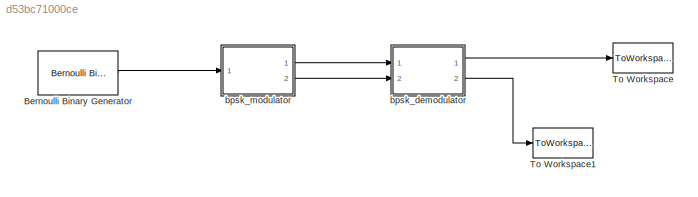
MODEL slx_d53bc71000ce
KIND model
CONFIG AbsTol = auto
CONFIG EnableMultiTasking = off
CONFIG FixedStep = auto
CONFIG MaxStep = auto
CONFIG MinStep = auto
CONFIG RelTol = 1e-3
CONFIG SampleTimeConstraint = Unconstrained
CONFIG Solver = VariableStepAuto
CONFIG SolverName = VariableStepAuto
CONFIG StartTime = 0.0
CONFIG StopTime = 0
BLOCK [Reference] Bernoulli Binary Generator  REF=commrandsrc3/Bernoulli Binary
Generator
  Ports = [0, 1]
  SourceBlock = commrandsrc3/Bernoulli Binary\nGenerator
  SourceProductBaseCode = CM
  SourceProductName = Communications System Toolbox
  SourceType = Bernoulli Binary Generator
BLOCK [ToWorkspace] To Workspace
  FixptAsFi = on
  MaxDataPoints = inf
  Ports = [1]
  SampleTime = -1
  Save2DSignal = 2-D array (concatenate along first dimension)
  VariableName = simout
BLOCK [ToWorkspace] To Workspace1
  FixptAsFi = on
  MaxDataPoints = inf
  Ports = [1]
  SampleTime = -1
  Save2DSignal = 2-D array (concatenate along first dimension)
  VariableName = simout1
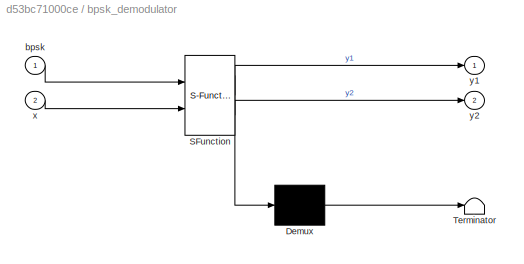
BLOCK [SubSystem] bpsk_demodulator
  ErrorFcn = Stateflow.Translate.translate
  PermitHierarchicalResolution = ExplicitOnly
  Ports = [2, 2]
  RequestExecContextInheritance = off
  SFBlockType = MATLAB Function
  TreatAsAtomicUnit = on
BLOCK [Demux] bpsk_demodulator/ Demux 
  Outputs = 1
  Ports = [1, 1]
BLOCK [S-Function] bpsk_demodulator/ SFunction 
  EnableBusSupport = on
  FunctionName = sf_sfun
  PortCounts = [2 3]
  Ports = [2, 3]
  SFcnIsStateOwnerBlock = off
  SFunctionDeploymentMode = off
  Tag = Stateflow S-Function untitled 1
BLOCK [Terminator] bpsk_demodulator/ Terminator 
BLOCK [Inport] bpsk_demodulator/bpsk
  IconDisplay = Port number
BLOCK [Inport] bpsk_demodulator/x
  IconDisplay = Port number
  Port = 2
BLOCK [Outport] bpsk_demodulator/y1
  IconDisplay = Port number
BLOCK [Outport] bpsk_demodulator/y2
  IconDisplay = Port number
  Port = 2
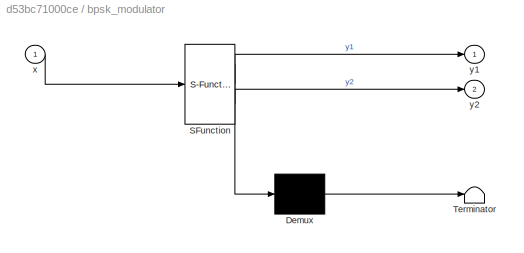
BLOCK [SubSystem] bpsk_modulator
  ErrorFcn = Stateflow.Translate.translate
  PermitHierarchicalResolution = ExplicitOnly
  Ports = [1, 2]
  RequestExecContextInheritance = off
  SFBlockType = MATLAB Function
  TreatAsAtomicUnit = on
BLOCK [Demux] bpsk_modulator/ Demux 
  Outputs = 1
  Ports = [1, 1]
BLOCK [S-Function] bpsk_modulator/ SFunction 
  EnableBusSupport = on
  FunctionName = sf_sfun
  PortCounts = [1 3]
  Ports = [1, 3]
  SFcnIsStateOwnerBlock = off
  SFunctionDeploymentMode = off
  Tag = Stateflow S-Function untitled 2
BLOCK [Terminator] bpsk_modulator/ Terminator 
BLOCK [Inport] bpsk_modulator/x
  IconDisplay = Port number
BLOCK [Outport] bpsk_modulator/y1
  IconDisplay = Port number
BLOCK [Outport] bpsk_modulator/y2
  IconDisplay = Port number
  Port = 2
LINE Bernoulli Binary Generator:1 -> bpsk_modulator:1
LINE bpsk_demodulator:1 -> To Workspace:1
LINE bpsk_demodulator:2 -> To Workspace1:1
LINE bpsk_modulator:1 -> bpsk_demodulator:1
LINE bpsk_modulator:2 -> bpsk_demodulator:2
CHART bpsk_demodulator states=1 transitions=1
  STATE_LABEL 'eML_blk_kernel()'
  STATE_LABEL 'SCRIPT:\nfunction [y1,y2] = bpsk_demodulator(bpsk,x)\n\nsnrd = zeros(1,7);\na = 0;\nfor r=1:7\n    snrd(r) = a;\n    a = a+4;\nend\n\nsigma = zeros(1,7);\nsnrl = zeros(1,7);\nperror = zeros(1,7);\nterror = zeros(1,7);\nbpsk1 = zeros(1,10000);\n\nfor r=1:7\n    h = randn(1,10000) + 1j*randn(1,10000);\n    noise = randn(1,10000) + 1j*randn(1,10000);\n    snrl(r) = 10^(snrd(r)/10);\n    sigma(r) = sqrt(10.^(-snrl(r)/10)...<+343ch>'
CHART bpsk_modulator states=1 transitions=1
  STATE_LABEL 'eML_blk_kernel()'
  STATE_LABEL 'SCRIPT:\nfunction [y1,y2] = bpsk_modulator(x)\nx = transpose(x);\nbpsk = zeros(1,10000);\nfor n=1:10000\n    if(x(n)==0)\n        bpsk(n) = -1;\n    else\n        bpsk(n) = 1;\n    end\nend\ny1 = bpsk;\ny2 = x;'
